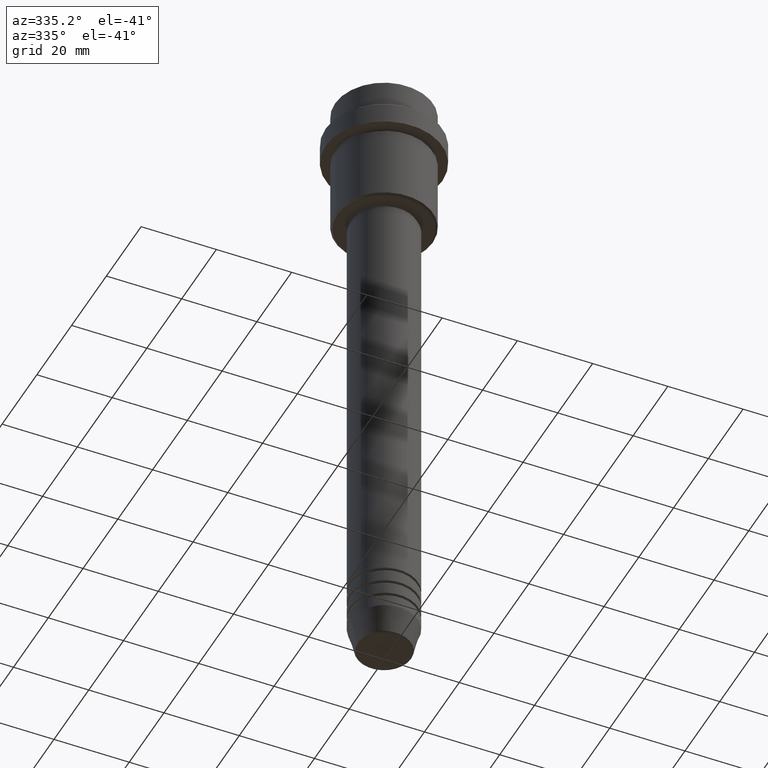
[diagram: clean part render]
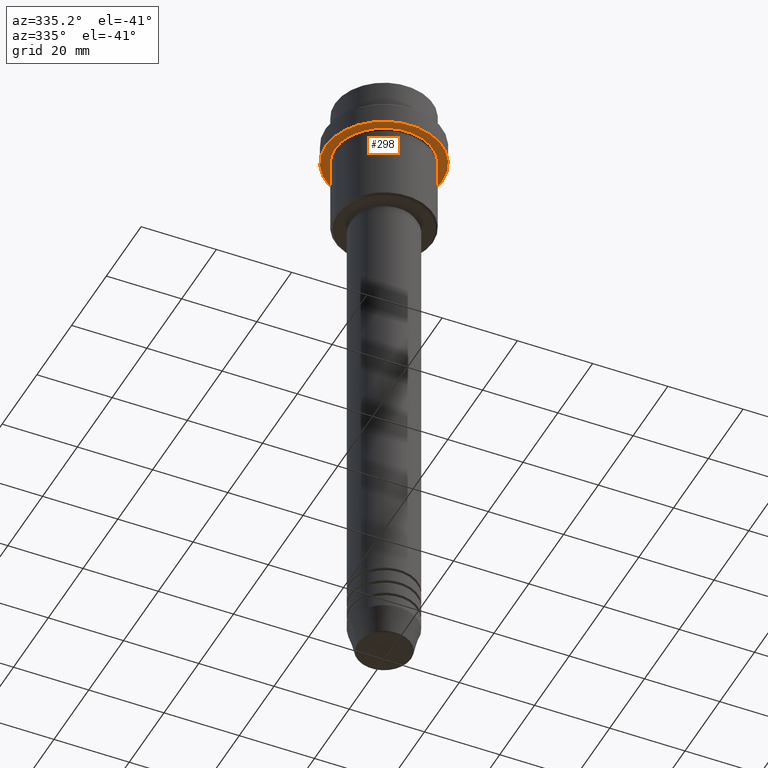
[diagram: same view with one face highlighted and labeled with its STEP entity id]
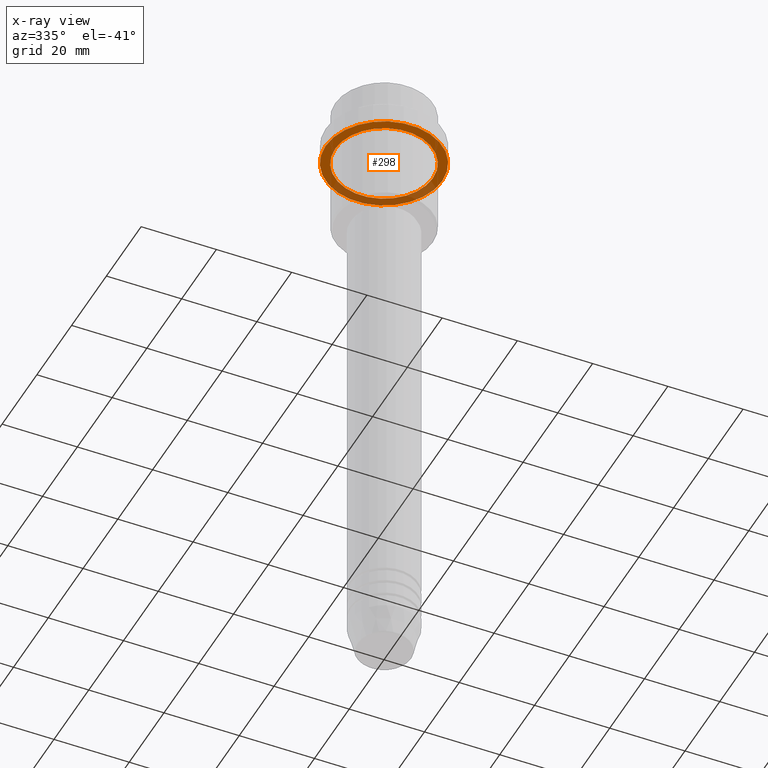
[diagram: x-ray of the same camera — body ghosted, the highlighted face saturated]
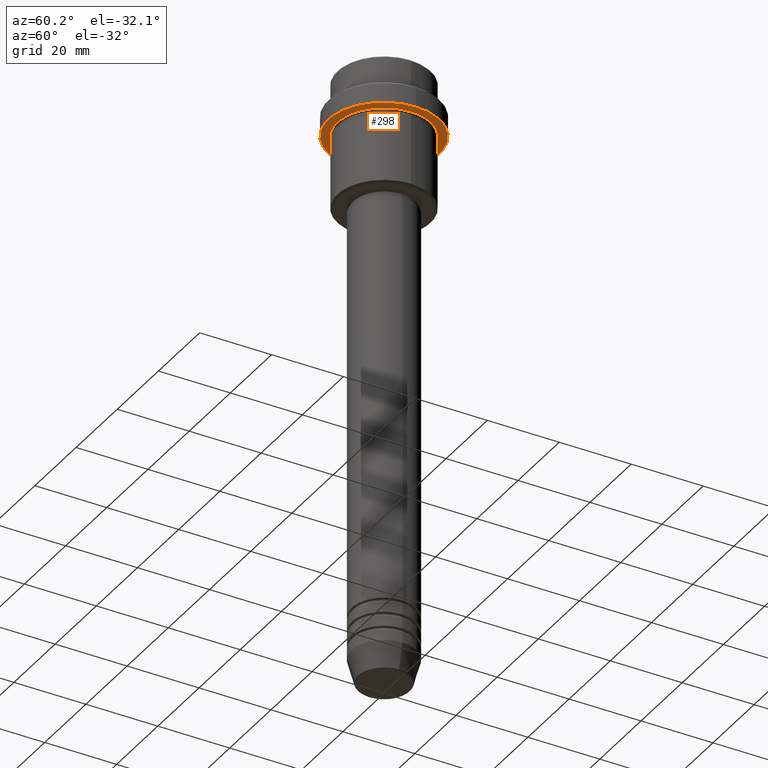
[diagram: same view with one face highlighted and labeled with its STEP entity id]
A machine part, auxiliary view. The second image highlights one B-rep face of the part: STEP entity #298.
The next image is the same camera in x-ray: the body ghosted, the highlighted face saturated — about 32% of this face is hidden behind the body in this view.
A second angle (auxiliary view) of the same face is appended — the face is thin or edge-on in the first view.
In plain terms, the highlighted planar face has unit normal (0, 0, -1).
Its self-contained STEP definition (entity closure, byte-faithful):
#56 = CIRCLE ( 'NONE', #1032, 12.99999999999999467 ) ;
#99 = CARTESIAN_POINT ( 'NONE',  ( 0.000000000000000000, 0.000000000000000000, -14.99999999999998757 ) ) ;
#121 = ORIENTED_EDGE ( 'NONE', *, *, #1273, .F. ) ;
#172 = ORIENTED_EDGE ( 'NONE', *, *, #1200, .T. ) ;
#177 = EDGE_CURVE ( 'NONE', #933, #610, #550, .T. ) ;
#210 = CARTESIAN_POINT ( 'NONE',  ( 0.000000000000000000, 0.000000000000000000, -14.99999999999998579 ) ) ;
#223 = DIRECTION ( 'NONE',  ( -1.000000000000000000, 0.000000000000000000, 0.000000000000000000 ) ) ;
#241 = PLANE ( 'NONE',  #850 ) ;
#258 = EDGE_LOOP ( 'NONE', ( #357, #121 ) ) ;
#298 = ADVANCED_FACE ( 'NONE', ( #788, #1100 ), #241, .T. ) ;
#317 = CARTESIAN_POINT ( 'NONE',  ( -15.50000000000000000, 1.898202538678397557E-15, -14.99999999999998757 ) ) ;
#357 = ORIENTED_EDGE ( 'NONE', *, *, #848, .F. ) ;
#383 = EDGE_LOOP ( 'NONE', ( #172, #862 ) ) ;
#401 = AXIS2_PLACEMENT_3D ( 'NONE', #1283, #752, #635 ) ;
#413 = CARTESIAN_POINT ( 'NONE',  ( 15.50000000000000000, 0.000000000000000000, -14.99999999999998757 ) ) ;
#550 = CIRCLE ( 'NONE', #1351, 12.99999999999999467 ) ;
#553 = DIRECTION ( 'NONE',  ( 0.000000000000000000, 0.000000000000000000, -1.000000000000000000 ) ) ;
#566 = CARTESIAN_POINT ( 'NONE',  ( 12.99999999999999467, 1.592040838891558504E-15, -14.99999999999998579 ) ) ;
#610 = VERTEX_POINT ( 'NONE', #618 ) ;
#618 = CARTESIAN_POINT ( 'NONE',  ( -12.99999999999999467, 0.000000000000000000, -14.99999999999998579 ) ) ;
#635 = DIRECTION ( 'NONE',  ( 1.000000000000000000, 0.000000000000000000, 0.000000000000000000 ) ) ;
#658 = DIRECTION ( 'NONE',  ( -0.000000000000000000, -0.000000000000000000, 1.000000000000000000 ) ) ;
#675 = CARTESIAN_POINT ( 'NONE',  ( 0.000000000000000000, 15.50000000000000000, -14.99999999999998579 ) ) ;
#744 = CIRCLE ( 'NONE', #401, 15.50000000000000000 ) ;
#752 = DIRECTION ( 'NONE',  ( -0.000000000000000000, -0.000000000000000000, 1.000000000000000000 ) ) ;
#760 = AXIS2_PLACEMENT_3D ( 'NONE', #99, #658, #976 ) ;
#764 = CIRCLE ( 'NONE', #760, 15.50000000000000000 ) ;
#788 = FACE_BOUND ( 'NONE', #383, .T. ) ;
#848 = EDGE_CURVE ( 'NONE', #1248, #1253, #764, .T. ) ;
#850 = AXIS2_PLACEMENT_3D ( 'NONE', #675, #553, #1000 ) ;
#855 = DIRECTION ( 'NONE',  ( -0.000000000000000000, -0.000000000000000000, 1.000000000000000000 ) ) ;
#862 = ORIENTED_EDGE ( 'NONE', *, *, #177, .T. ) ;
#933 = VERTEX_POINT ( 'NONE', #566 ) ;
#976 = DIRECTION ( 'NONE',  ( 1.000000000000000000, 0.000000000000000000, 0.000000000000000000 ) ) ;
#1000 = DIRECTION ( 'NONE',  ( -1.000000000000000000, 0.000000000000000000, -0.000000000000000000 ) ) ;
#1032 = AXIS2_PLACEMENT_3D ( 'NONE', #210, #1085, #1394 ) ;
#1072 = CARTESIAN_POINT ( 'NONE',  ( 0.000000000000000000, 0.000000000000000000, -14.99999999999998579 ) ) ;
#1085 = DIRECTION ( 'NONE',  ( -0.000000000000000000, -0.000000000000000000, 1.000000000000000000 ) ) ;
#1100 = FACE_OUTER_BOUND ( 'NONE', #258, .T. ) ;
#1200 = EDGE_CURVE ( 'NONE', #610, #933, #56, .T. ) ;
#1248 = VERTEX_POINT ( 'NONE', #413 ) ;
#1253 = VERTEX_POINT ( 'NONE', #317 ) ;
#1273 = EDGE_CURVE ( 'NONE', #1253, #1248, #744, .T. ) ;
#1283 = CARTESIAN_POINT ( 'NONE',  ( 0.000000000000000000, 0.000000000000000000, -14.99999999999998757 ) ) ;
#1351 = AXIS2_PLACEMENT_3D ( 'NONE', #1072, #855, #223 ) ;
#1394 = DIRECTION ( 'NONE',  ( -1.000000000000000000, 0.000000000000000000, 0.000000000000000000 ) ) ;